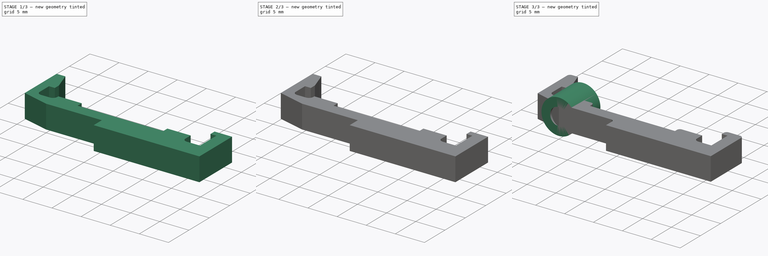
[diagram: build sequence overview — one tinted view per stage of 3, left to right]
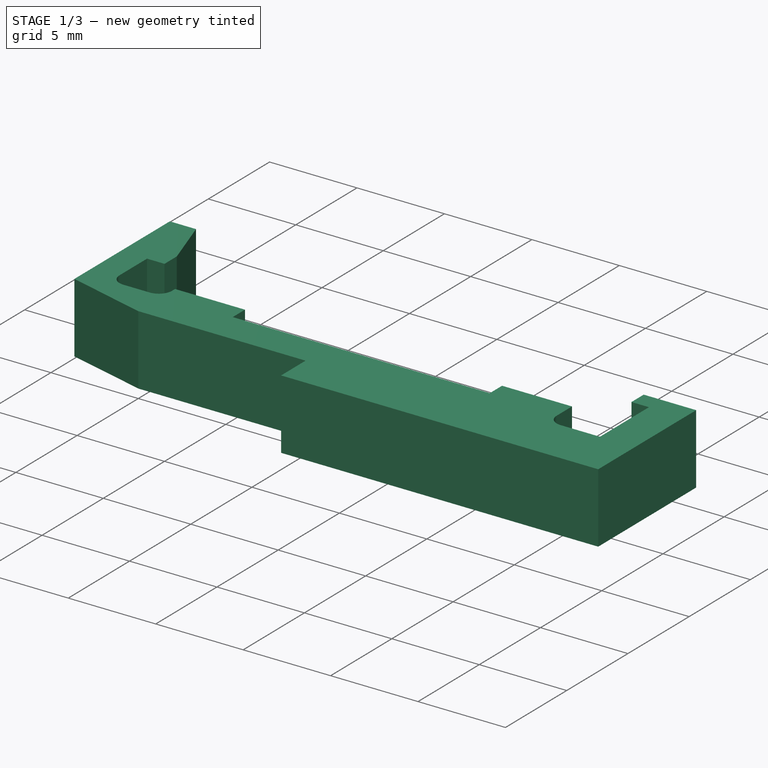
[diagram: stage 1 of 3 — iso view after this stage's code; geometry added in this stage tinted green]
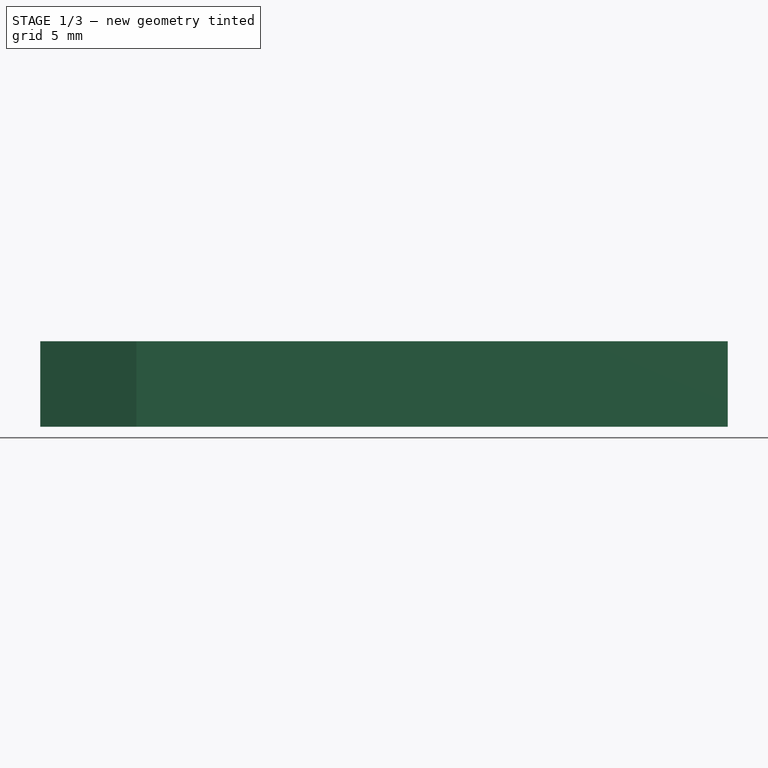
[diagram: stage 1 of 3 — front view after this stage's code; geometry added in this stage tinted green]
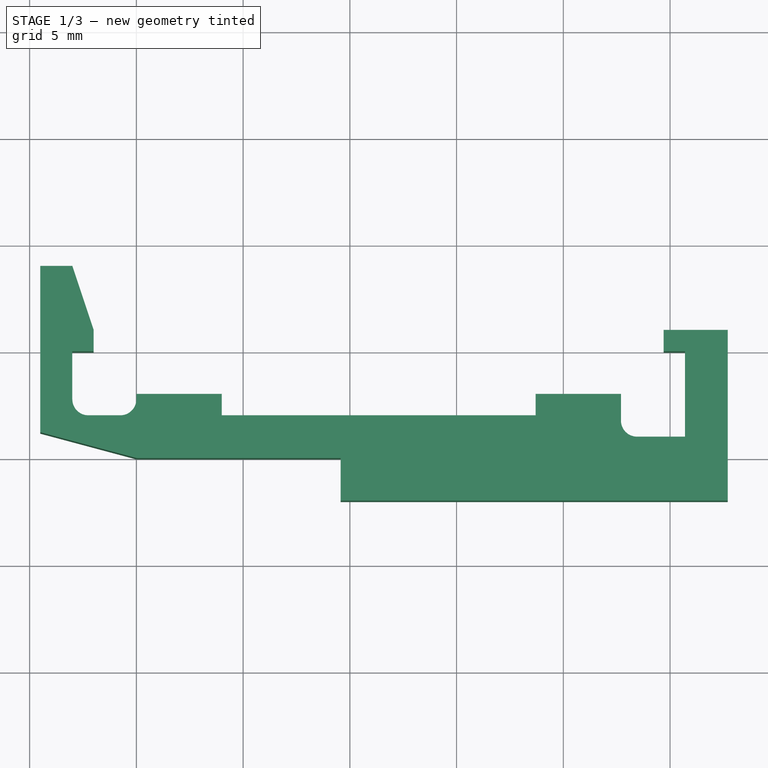
[diagram: stage 1 of 3 — top view after this stage's code; geometry added in this stage tinted green]
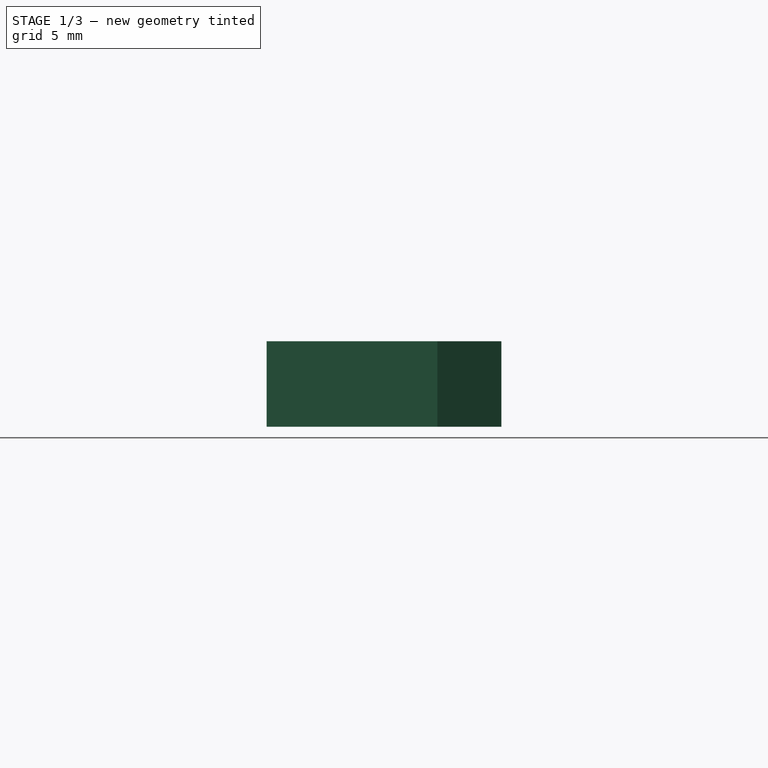
[diagram: stage 1 of 3 — right view after this stage's code; geometry added in this stage tinted green]
FCSTD DOCUMENT  (FreeCAD 0.19R23756 (Git))
Label: PCB_Mount
License: All rights reserved
LicenseURL: http://en.wikipedia.org/wiki/All_rights_reserved
objects: Sketcher::SketchObject×4, PartDesign::Pad×3, Spreadsheet::Sheet×2, PartDesign::Body×2, PartDesign::Pocket×1, PartDesign::Plane×1, PartDesign::Fillet×1
note: 17 computed .brp shape members not serialized (recipe doc carries the construction recipe); baked Part::Feature solids carry a one-line shape summary decoded from their .brp

FEATURE [PartDesign::Body] Body  label="PCB_Socket"
  Group = -> [Sketch,Pad]
  Origin = -> Origin
  Placement = pos=(-11,0,0) rot=(0,0,1;0rad)
  Tip = -> Pad
FEATURE [Sketcher::SketchObject] Sketch008
  FullyConstrained = false
  MapMode = 5
  Support = -> [XY_Plane005]
  expr: Constraints[66] = Spreadsheet004.CLIP_DISTANCE_TO_BASE + Spreadsheet004.CLIP_PCB_THICKNESS - 3
  expr: Constraints[56] = Spreadsheet004.CLIP_DISTANCE_TO_BASE + Spreadsheet004.CLIP_PCB_THICKNESS - 4
  expr: Constraints[40] = Spreadsheet004.CLIP_PCB_SIZE
  expr: Constraints[58] = Spreadsheet004.CLIP_PCB_SIZE / 3
  expr: Constraints[59] = Spreadsheet004.CLIP_DISTANCE_TO_BASE
  expr: Constraints[60] = Spreadsheet004.CLIP_DISTANCE_TO_BASE + Spreadsheet004.CLIP_PCB_THICKNESS
  sketch-geometry (26):
    g0: LineSegment StartX=-4.5 StartY=1.20577 StartZ=0 EndX=-4.5 EndY=9 EndZ=0
    g1: LineSegment StartX=-2 StartY=6 StartZ=0 EndX=-2 EndY=5 EndZ=0
    g2: LineSegment StartX=-2 StartY=5 StartZ=0 EndX=-3 EndY=5 EndZ=0
    g3: LineSegment StartX=-3 StartY=5 StartZ=0 EndX=-3 EndY=2.75 EndZ=0
    g4: LineSegment StartX=0 StartY=2.75 StartZ=0 EndX=0 EndY=3 EndZ=0
    g5: LineSegment StartX=-3 StartY=9 StartZ=0 EndX=-4.5 EndY=9 EndZ=0
    g6: LineSegment StartX=-2 StartY=6 StartZ=0 EndX=-3 EndY=9 EndZ=0
    g7: LineSegment StartX=27.7 StartY=-2 StartZ=0 EndX=27.7 EndY=6 EndZ=0
    g8: LineSegment StartX=24.7 StartY=6 StartZ=0 EndX=27.7 EndY=6 EndZ=0
    g9: LineSegment StartX=24.7 StartY=6 StartZ=0 EndX=24.7 EndY=5 EndZ=0
    g10: LineSegment StartX=24.7 StartY=5 StartZ=0 EndX=25.7 EndY=5 EndZ=0
    g11: LineSegment StartX=25.7 StartY=5 StartZ=0 EndX=25.7 EndY=1 EndZ=0
    g12: LineSegment StartX=-2.25 StartY=2 StartZ=0 EndX=-0.75 EndY=2 EndZ=0
    g13: ArcOfCircle CenterX=-2.25 CenterY=2.75 CenterZ=0 NormalX=0 NormalY=0 NormalZ=1 AngleXU=0 Radius=0.75 StartAngle=3.14159 EndAngle=4.71239
    g14: ArcOfCircle CenterX=-0.75 CenterY=2.75 CenterZ=0 NormalX=0 NormalY=0 NormalZ=1 AngleXU=0 Radius=0.75 StartAngle=4.71239 EndAngle=6.28319
    g15: LineSegment StartX=-2.25 StartY=2.75 StartZ=0 EndX=-0.75 EndY=2.75 EndZ=0
    g16: GeomPoint X=0 Y=0 Z=0
    g17: LineSegment StartX=9.56667 StartY=0 StartZ=0 EndX=0 EndY=0 EndZ=0
    g18: LineSegment StartX=-4.5 StartY=1.20577 StartZ=0 EndX=0 EndY=0 EndZ=0
    g19: LineSegment StartX=22.7 StartY=3 StartZ=0 EndX=0 EndY=3 EndZ=0
    g20: LineSegment StartX=-2 StartY=5 StartZ=0 EndX=24.7 EndY=5 EndZ=0
    g21: LineSegment StartX=9.56667 StartY=0 StartZ=0 EndX=9.56667 EndY=-2 EndZ=0
    g22: LineSegment StartX=9.56667 StartY=-2 StartZ=0 EndX=27.7 EndY=-2 EndZ=0
    g23: LineSegment StartX=22.7 StartY=3 StartZ=0 EndX=22.7 EndY=1.75 EndZ=0
    g24: LineSegment StartX=23.45 StartY=1 StartZ=0 EndX=25.7 EndY=1 EndZ=0
    g25: ArcOfCircle CenterX=23.45 CenterY=1.75 CenterZ=0 NormalX=0 NormalY=0 NormalZ=1 AngleXU=0 Radius=0.75 StartAngle=3.14159 EndAngle=4.71239
  constraints (72):
    c: PointOnObject(g4,g-2)
    c: Vertical(g0)
    c: Vertical(g1)
    c: Coincident(g1,g2)
    c: Horizontal(g2)
    c: Coincident(g2,g3)
    c: Horizontal(g5)
    c: Coincident(g0,g5)
    c: Coincident(g6,g1)
    c: Vertical(g7)
    c: Coincident(g8,g7)
    c: Horizontal(g8)
    c: Coincident(g8,g9)
    c: Vertical(g9)
    c: Coincident(g9,g10)
    c: Horizontal(g10)
    c: DistanceX(g10,g10) = 1
    c: DistanceY(g9,g9) = 1
    c: Coincident(g6,g5)
    c: DistanceY(g1,g1) = 1
    c: Horizontal(g12)
    c: DistanceX(g5,g5) = 1.5
    c: Tangent(g3,g13) = -1.5708
    c: Tangent(g12,g13) = -1.5708
    c: Tangent(g4,g14) = -1.5708
    c: Tangent(g12,g14) = -1.5708
    c: Coincident(g15,g13)
    c: Coincident(g15,g14)
    c: Horizontal(g15)
    c: DistanceX(g15,g15) = 1.5
    c: Distance(g1,g5) = 3
    c: Distance(g1,g0) = 2.5
    c: Distance(g4,g0) = 4.5
    c: Coincident(g16,g-1)
    c: Coincident(g17,g-1)
    c: Coincident(g0,g18)
    c: Coincident(g18,g17)
    c: Angle(g17,g18) = 2.87979
    c: Coincident(g19,g4)
    c: Horizontal(g19)
    c: Distance(g11,g3) = 28.7
    c: Vertical(g3)
    c: Vertical(g4)
    c: DistanceX(g8,g8) = 3
    c: Coincident(g10,g11)
    c: Vertical(g11)
    c: Coincident(g20,g1)
    c: Coincident(g20,g9)
    c: Horizontal(g20)
    c: Coincident(g21,g22)
    c: Horizontal(g22)
    c: Vertical(g21)
    c: Coincident(g21,g17)
    c: Coincident(g7,g22)
    c: DistanceY(g21,g21) = 2
    c: Horizontal(g17)
    c: Distance(g12,g20) = 3
    c: Distance(g12,g17) = 2
    c: DistanceX(g17,g17) = 9.56667
    c: Distance(g21,g19) = 5
    c: Distance(g21,g20) = 7
    c: Distance(g3,g4) = 3
    c: Horizontal(g24)
    c: Vertical(g23)
    c: Coincident(g11,g24)
    c: Coincident(g23,g19)
    c: Distance(g11,g20) = 4
    c: Tangent(g23,g25) = -1.5708
    c: Tangent(g24,g25) = -1.5708
    c: Distance(g23,g11) = 3
    c: Distance(g12,g13) = 0.75
    c: Distance(g25,g24) = 0.75
FEATURE [PartDesign::Pad] Pad007
  Direction = (1,1,1)
  Length = 4
  Length2 = 100
  Midplane = true
  Profile = -> Sketch008
  Refine = true
  Type = 0
  expr: Length = Spreadsheet004.CLIP_PAD
FEATURE [Spreadsheet::Sheet] Spreadsheet004  label="Spreadsheet_PCB_CLIP"
  cells = A2=DESCRIPTION; B2=VALUE; C2= NOTES; A3=PCB Size; B3(CLIP_PCB_SIZE)=28.7; C3=Minimum value is 14 mm! For 3D prints add a little meat i.e. 0.4 mm.; A4=PCB Thickness; B4(CLIP_PCB_THICKNESS)=2; C4=Most PCBs are 1.6 mm thick. For 3D prints add a little meat i.e. 0.4 mm.; A5=Distance to Base; B5(CLIP_DISTANCE_TO_BASE)=5; C5=The distance between PCB and the base. Minimum value is 5 mm!; A6=Clip Thickness; B6(CLIP_PAD)=4; C6=The padding size of the clip. If you want to make the clip thicker. Minimum value 4 mm!
FEATURE [Sketcher::SketchObject] Sketch009
  ExternalGeometry = -> [Pad007]
  FullyConstrained = false
  MapMode = 5
  Placement = pos=(0,3,0) rot=(0,0.707107,0.707107;3.14159rad)
  Support = -> [Pad007]
  expr: Constraints[10] = Spreadsheet004.CLIP_PCB_SIZE - 6 - 6 - 2
  sketch-geometry (6):
    g0: LineSegment StartX=-18.7 StartY=2 StartZ=0 EndX=-4 EndY=2 EndZ=0
    g1: LineSegment StartX=-4 StartY=2 StartZ=0 EndX=-4 EndY=-2 EndZ=0
    g2: LineSegment StartX=-4 StartY=-2 StartZ=0 EndX=-18.7 EndY=-2 EndZ=0
    g3: LineSegment StartX=-18.7 StartY=-2 StartZ=0 EndX=-18.7 EndY=2 EndZ=0
    g4: LineSegment StartX=-4 StartY=-2 StartZ=0 EndX=0 EndY=-2 EndZ=0
    g5: LineSegment StartX=-22.7 StartY=-2 StartZ=0 EndX=-18.7 EndY=-2 EndZ=0
  constraints (16):
    c: Coincident(g0,g1)
    c: Coincident(g1,g2)
    c: Coincident(g2,g3)
    c: Coincident(g3,g0)
    c: Horizontal(g0)
    c: Horizontal(g2)
    c: Vertical(g1)
    c: Vertical(g3)
    c: PointOnObject(g0,g-3)
    c: PointOnObject(g1,g-4)
    c: DistanceX(g0,g0) = 14.7
    c: Coincident(g4,g1)
    c: Coincident(g4,g-5)
    c: Coincident(g5,g-6)
    c: Coincident(g5,g2)
    c: Equal(g4,g5)
FEATURE [PartDesign::Pocket] Pocket001
  BaseFeature = -> Pad007
  Length = 1
  Length2 = 100
  Profile = -> Sketch009
  Refine = true
  Type = 0
  expr: Length = Spreadsheet004.CLIP_DISTANCE_TO_BASE - 4
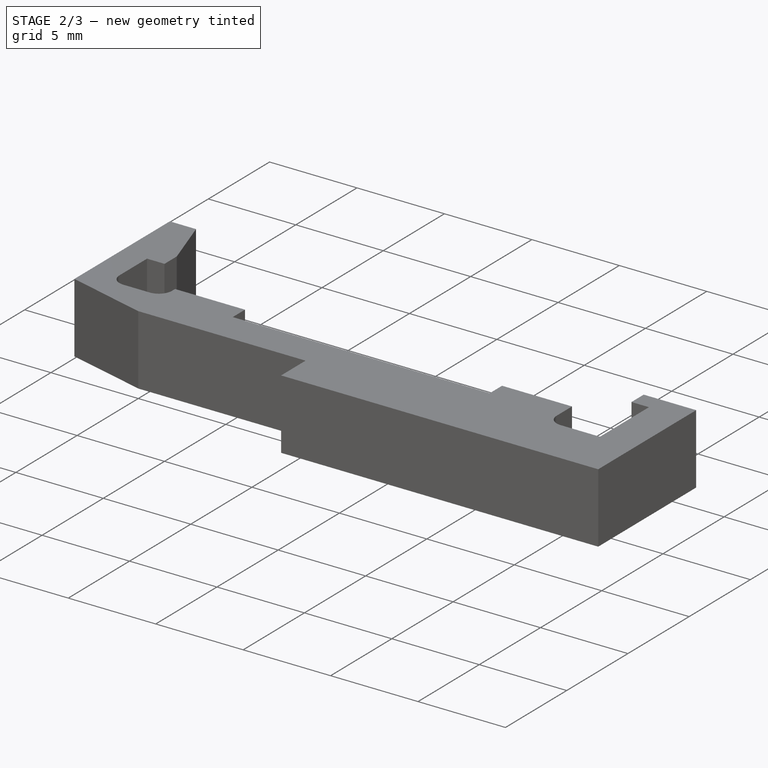
[diagram: stage 2 of 3 — iso view after this stage's code; geometry added in this stage tinted green]
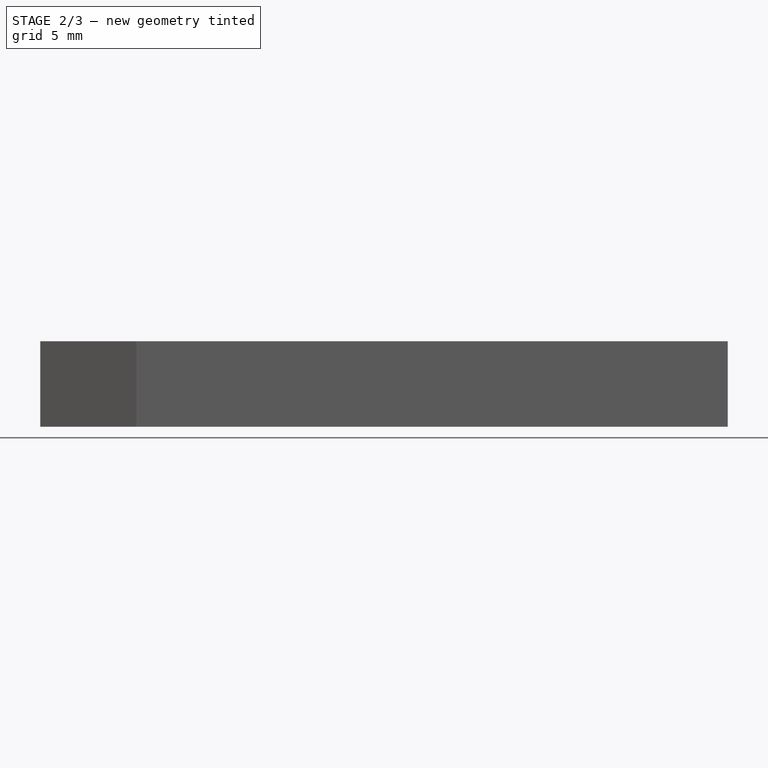
[diagram: stage 2 of 3 — front view after this stage's code; geometry added in this stage tinted green]
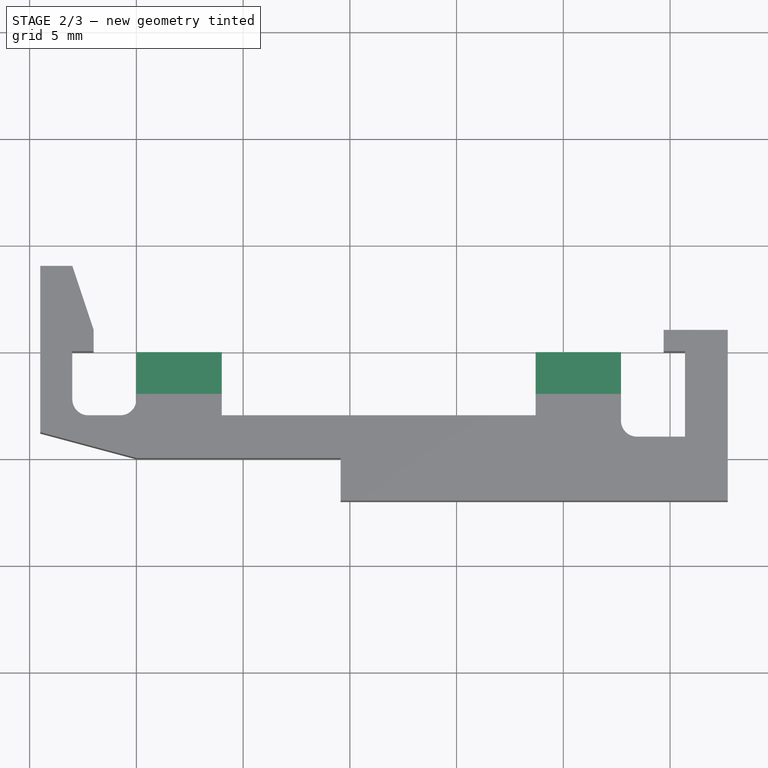
[diagram: stage 2 of 3 — top view after this stage's code; geometry added in this stage tinted green]
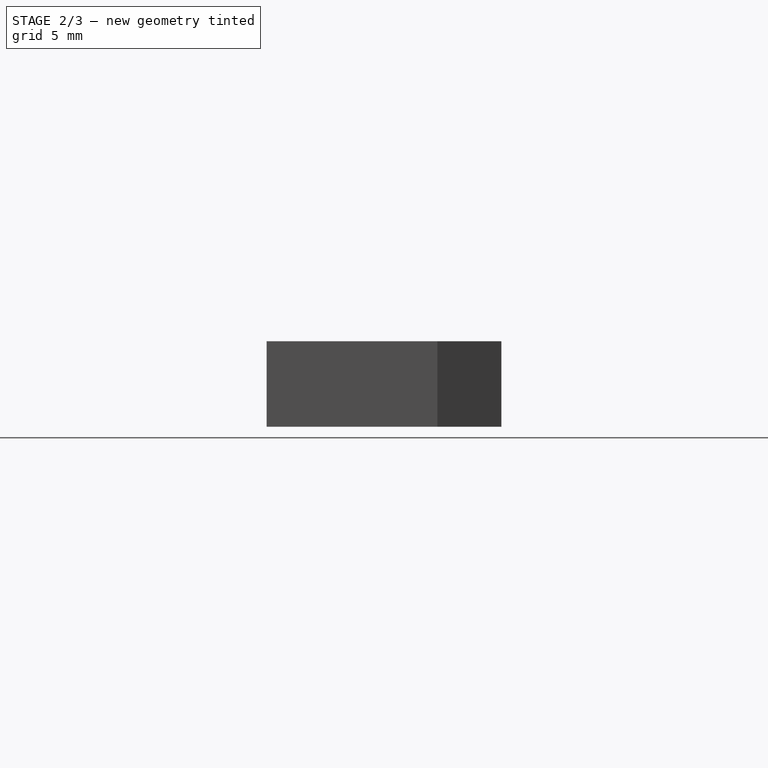
[diagram: stage 2 of 3 — right view after this stage's code; geometry added in this stage tinted green]
FEATURE [PartDesign::Plane] DatumPlane001
  Length = 62.9665
  MapMode = 5
  Placement = pos=(0,3,0) rot=(0,0.707107,0.707107;3.14159rad)
  ResizeMode = 0
  Support = -> [Pocket001]
  Width = 60.2665
FEATURE [Sketcher::SketchObject] Sketch010
  ExternalGeometry = -> [Pocket001]
  FullyConstrained = false
  MapMode = 5
  Placement = pos=(0,3,0) rot=(0,0.707107,0.707107;3.14159rad)
  Support = -> [DatumPlane001]
  sketch-geometry (8):
    g0: LineSegment StartX=-22.7 StartY=-2 StartZ=0 EndX=-18.7 EndY=-2 EndZ=0
    g1: LineSegment StartX=-18.7 StartY=-2 StartZ=0 EndX=-18.7 EndY=-0.5 EndZ=0
    g2: LineSegment StartX=-18.7 StartY=-0.5 StartZ=0 EndX=-22.7 EndY=-0.5 EndZ=0
    g3: LineSegment StartX=-22.7 StartY=-0.5 StartZ=0 EndX=-22.7 EndY=-2 EndZ=0
    g4: LineSegment StartX=-4 StartY=-2 StartZ=0 EndX=0 EndY=-2 EndZ=0
    g5: LineSegment StartX=0 StartY=-2 StartZ=0 EndX=0 EndY=-0.5 EndZ=0
    g6: LineSegment StartX=0 StartY=-0.5 StartZ=0 EndX=-4 EndY=-0.5 EndZ=0
    g7: LineSegment StartX=-4 StartY=-0.5 StartZ=0 EndX=-4 EndY=-2 EndZ=0
  constraints (22):
    c: Coincident(g0,g1)
    c: Coincident(g1,g2)
    c: Coincident(g2,g3)
    c: Coincident(g3,g0)
    c: Horizontal(g0)
    c: Horizontal(g2)
    c: Vertical(g1)
    c: Vertical(g3)
    c: Coincident(g0,g-5)
    c: PointOnObject(g1,g-3)
    c: Coincident(g4,g5)
    c: Coincident(g5,g6)
    c: Coincident(g6,g7)
    c: Coincident(g7,g4)
    c: Horizontal(g4)
    c: Horizontal(g6)
    c: Vertical(g5)
    c: Vertical(g7)
    c: Coincident(g4,g-7)
    c: PointOnObject(g5,g-8)
    c: DistanceY(g3,g3) = 1.5
    c: Equal(g7,g3)
FEATURE [PartDesign::Pad] Pad008
  BaseFeature = -> Pocket001
  Direction = (1,1,1)
  Length = 2
  Length2 = 100
  Profile = -> Sketch010
  Refine = true
  Type = 0
  expr: Length = Spreadsheet004.CLIP_PCB_THICKNESS
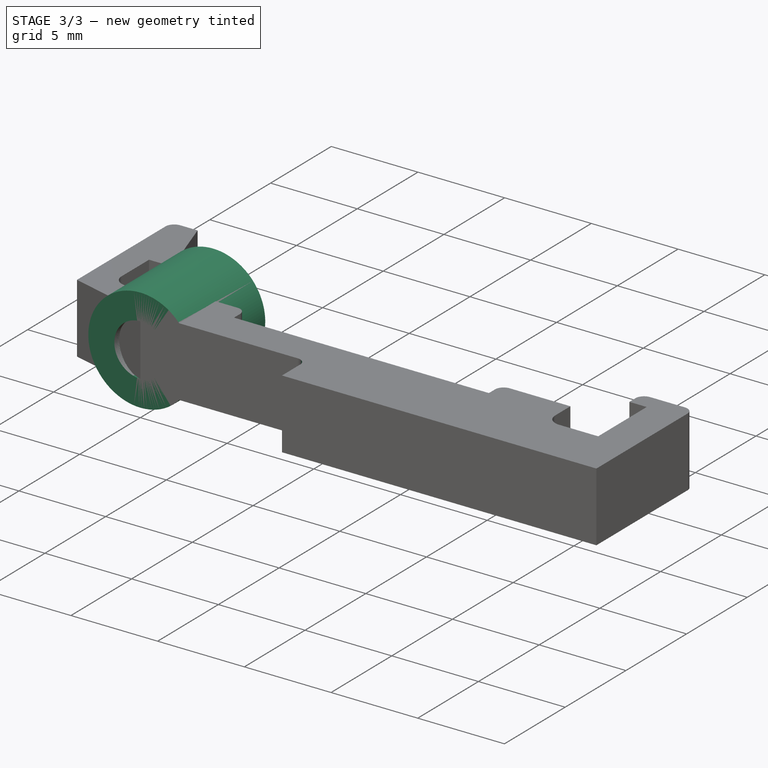
[diagram: stage 3 of 3 — iso view after this stage's code; geometry added in this stage tinted green]
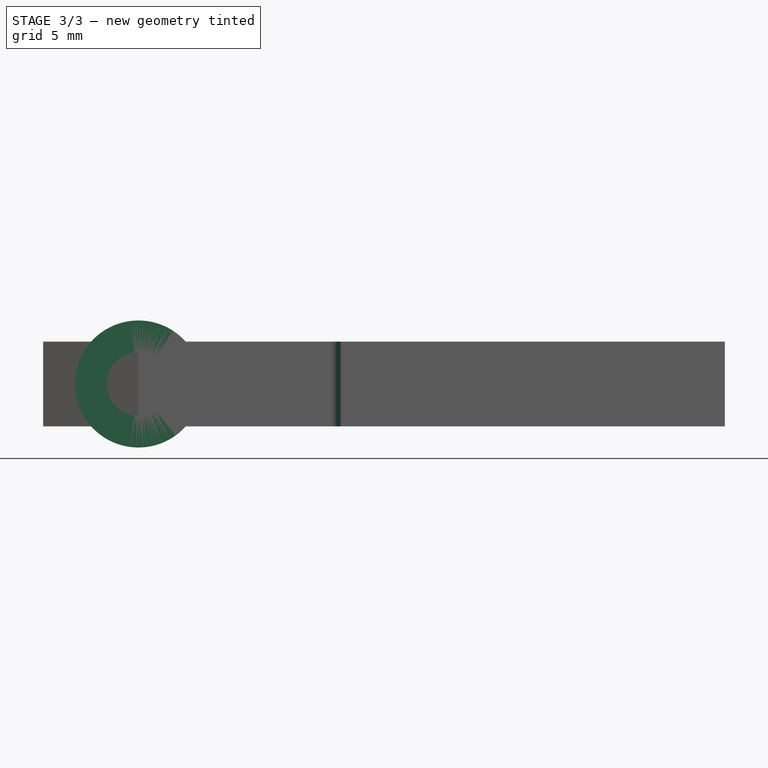
[diagram: stage 3 of 3 — front view after this stage's code; geometry added in this stage tinted green]
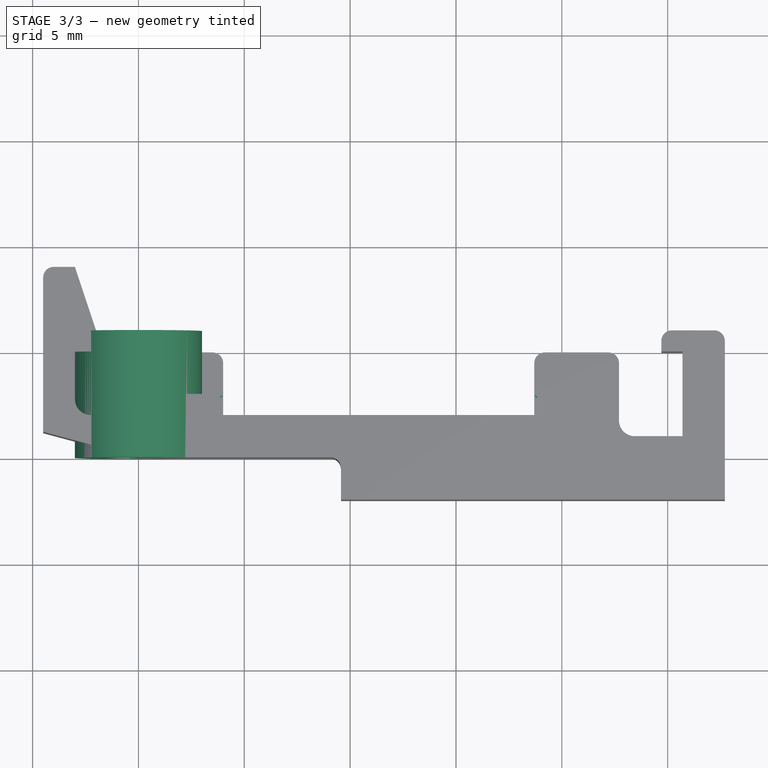
[diagram: stage 3 of 3 — top view after this stage's code; geometry added in this stage tinted green]
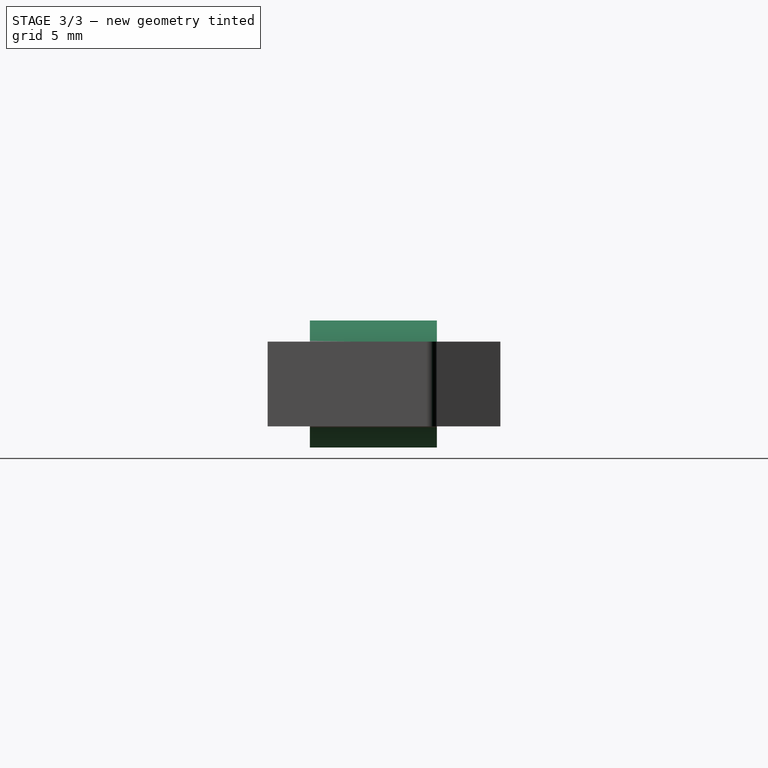
[diagram: stage 3 of 3 — right view after this stage's code; geometry added in this stage tinted green]
FEATURE [Spreadsheet::Sheet] Spreadsheet001  label="Spreadsheet_PCB_SOCKET"
  cells = A2=DESCRIPTION; B2=VALUE; C2= NOTES; A3=Screw Hole Diameter; B3(SOCKET_SCREW_HOLE_DIAMETER)=3; C3=The diameter for the screw hole.; A4=Wall Thickness; B4(SOCKET_WALL_THICKNESS)=1.5; C4=The wall thickness of the socket.; A5=Socket Height; B5(SOCKET_HEIGHT)=6; C5=The height of the socket.
FEATURE [Sketcher::SketchObject] Sketch
  FullyConstrained = false
  MapMode = 5
  Placement = pos=(0,0,0) rot=(1,0,0;1.5708rad)
  Support = -> [XZ_Plane]
  expr: Constraints[2] = <<Spreadsheet_PCB_SOCKET>>.SOCKET_SCREW_HOLE_DIAMETER
  expr: Constraints[3] = <<Spreadsheet_PCB_SOCKET>>.SOCKET_SCREW_HOLE_DIAMETER + <<Spreadsheet_PCB_SOCKET>>.SOCKET_WALL_THICKNESS * 2
  sketch-geometry (2):
    g0: Circle CenterX=0 CenterY=0 CenterZ=0 NormalX=0 NormalY=0 NormalZ=1 AngleXU=0 Radius=3
    g1: Circle CenterX=0 CenterY=0 CenterZ=0 NormalX=0 NormalY=0 NormalZ=1 AngleXU=0 Radius=1.5
  constraints (4):
    c: Coincident(g0,g-1)
    c: Coincident(g1,g0)
    c: Diameter(g1) = 3
    c: Diameter(g0) = 6
FEATURE [PartDesign::Pad] Pad
  Direction = (1,1,1)
  Length = 6
  Length2 = 100
  Placement = pos=(0,0,0) rot=(1,0,0;1.5708rad)
  Profile = -> Sketch
  Refine = true
  Reversed = true
  Type = 0
  expr: Length = <<Spreadsheet_PCB_SOCKET>>.SOCKET_HEIGHT
FEATURE [PartDesign::Fillet] Fillet003
  Base = -> Pad008 [Edge45,Edge89,Edge88,Edge83,Edge82,Edge77,Edge73,Edge43,Edge2,Edge35]
  BaseFeature = -> Pad008
  Radius = 0.5
  Refine = true
  SupportTransform = false
FEATURE [PartDesign::Body] Body005  label="PCB_Clip"
  Group = -> [Sketch008,Pad007,Sketch009,Pocket001,DatumPlane001,Sketch010,Pad008,Fillet003]
  Origin = -> Origin005
  Tip = -> Fillet003
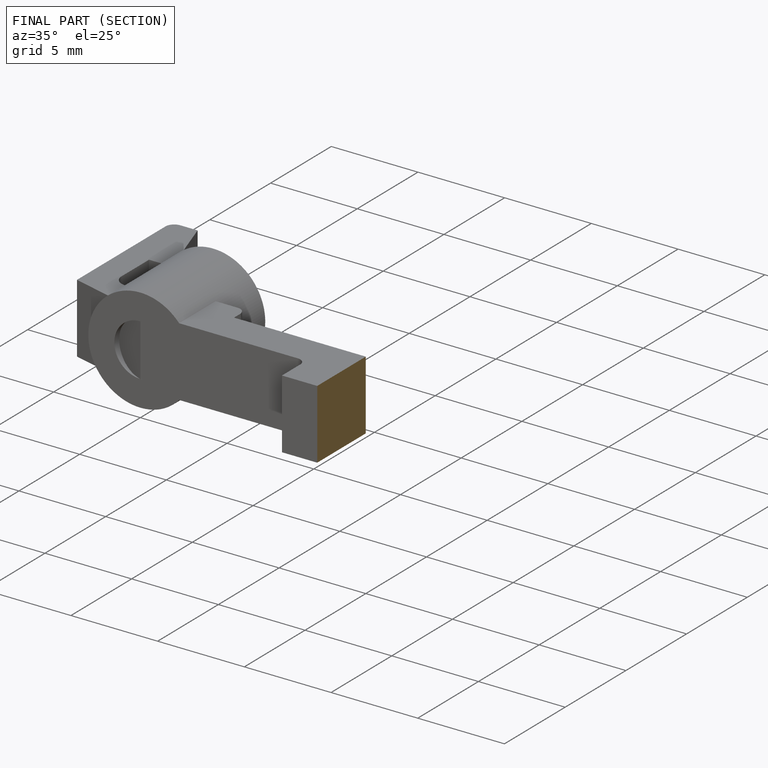
[diagram: finished part — half-section view (interior)]
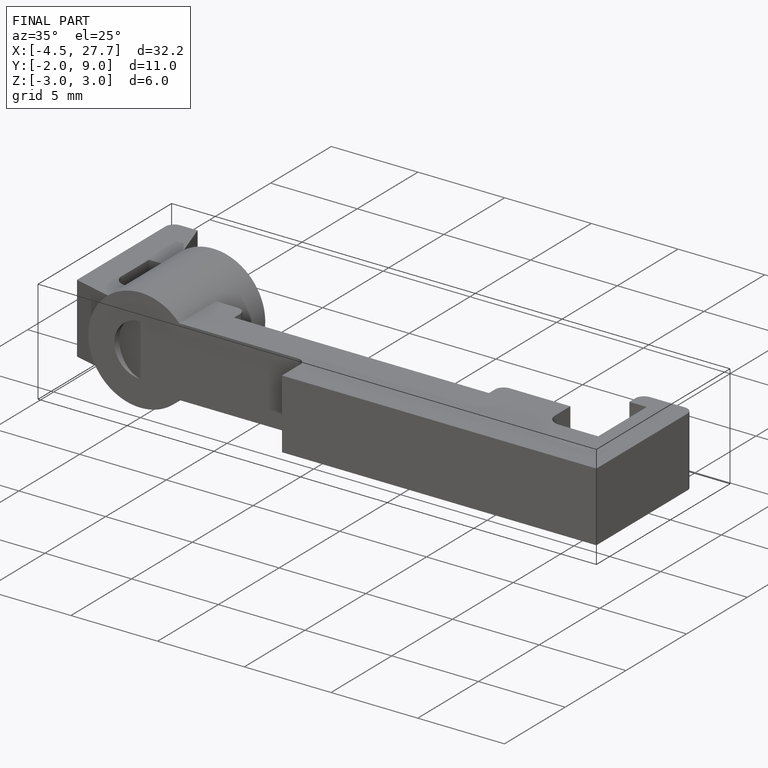
[diagram: finished part — iso view with bounding-box wireframe]
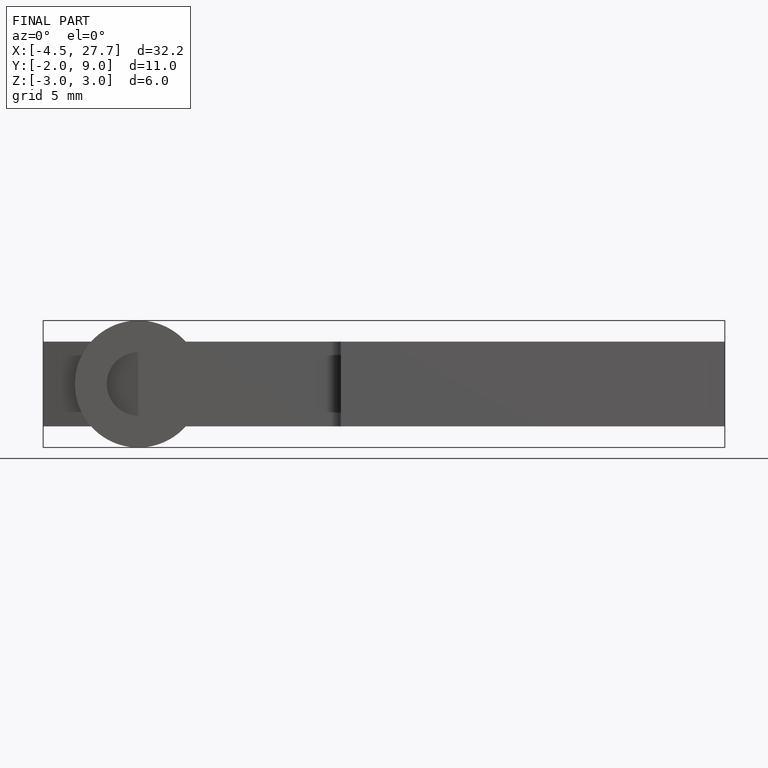
[diagram: finished part — front view with bounding-box wireframe]
